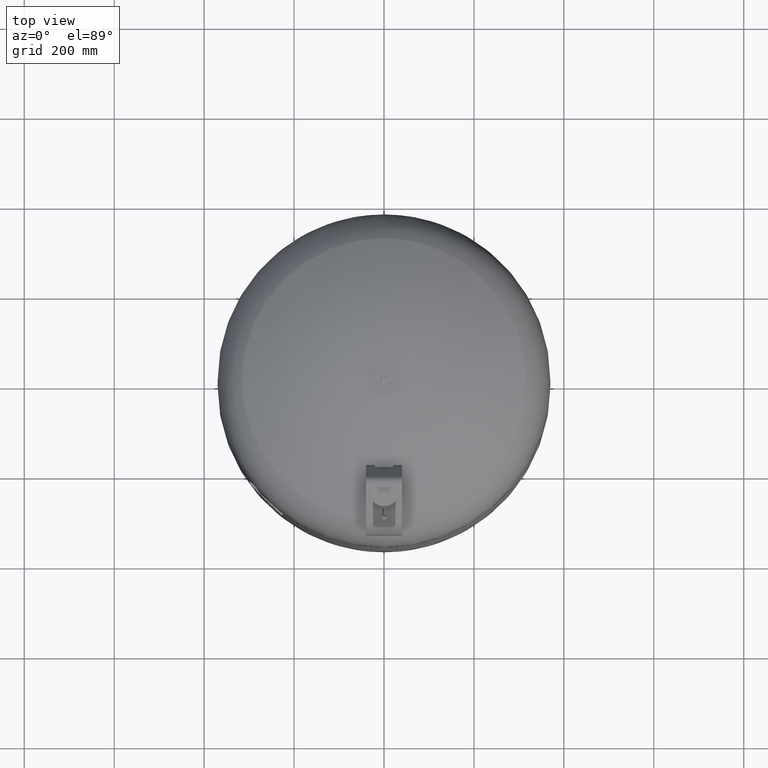
[diagram: clean part render]
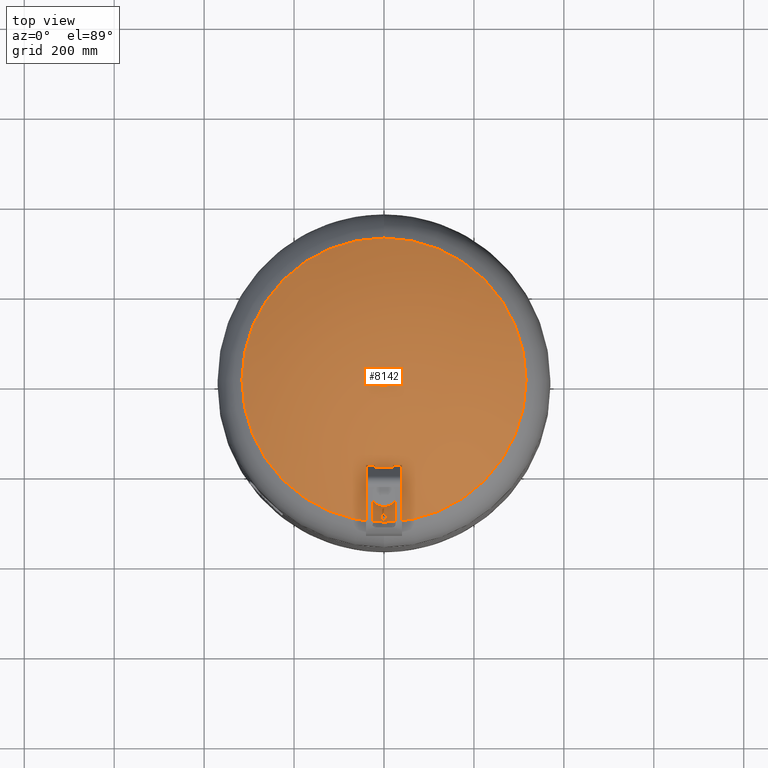
[diagram: same view with one face highlighted and labeled with its STEP entity id]
A machine part, top view. The second image highlights one B-rep face of the part: STEP entity #8142.
In plain terms, the highlighted spherical surface has radius 594 mm.
Its self-contained STEP definition (entity closure, byte-faithful):
#8081=CARTESIAN_POINT('',(-1.114251E-014,-315.931034482758610,1125.014494274920500));
#8082=VERTEX_POINT('',#8081);
#8098=CARTESIAN_POINT('',(2.754660E-014,315.931034482758610,1125.014494274920300));
#8099=VERTEX_POINT('',#8098);
#8107=CARTESIAN_POINT('',(315.931034482758610,-1.671377E-014,1125.014494274920500));
#8108=VERTEX_POINT('',#8107);
#8109=CARTESIAN_POINT('',(-1.114251E-014,-1.671377E-014,1125.014494274920500));
#8110=DIRECTION('',(0.0,0.0,-1.0));
#8111=DIRECTION('',(1.0,0.0,0.0));
#8112=AXIS2_PLACEMENT_3D('',#8109,#8110,#8111);
#8113=CIRCLE('',#8112,315.931034482758610);
#8114=EDGE_CURVE('',#8099,#8108,#8113,.T.);
#8116=CARTESIAN_POINT('',(-1.114251E-014,-1.671377E-014,1125.014494274920500));
#8117=DIRECTION('',(0.0,0.0,-1.0));
#8118=DIRECTION('',(1.0,0.0,0.0));
#8119=AXIS2_PLACEMENT_3D('',#8116,#8117,#8118);
#8120=CIRCLE('',#8119,315.931034482758610);
#8121=EDGE_CURVE('',#8108,#8082,#8120,.T.);
#8126=CARTESIAN_POINT('',(-7.274402E-014,-1.091160E-013,622.0));
#8127=DIRECTION('',(0.0,-1.0,0.0));
#8128=DIRECTION('',(-1.0,0.0,0.0));
#8129=AXIS2_PLACEMENT_3D('',#8126,#8127,#8128);
#8130=SPHERICAL_SURFACE('',#8129,594.0);
#8131=ORIENTED_EDGE('',*,*,#8121,.F.);
#8132=ORIENTED_EDGE('',*,*,#8114,.F.);
#8133=CARTESIAN_POINT('',(-1.114251E-014,-1.671377E-014,1125.014494274920500));
#8134=DIRECTION('',(0.0,0.0,-1.0));
#8135=DIRECTION('',(1.0,0.0,0.0));
#8136=AXIS2_PLACEMENT_3D('',#8133,#8134,#8135);
#8137=CIRCLE('',#8136,315.931034482758610);
#8138=EDGE_CURVE('',#8082,#8099,#8137,.T.);
#8139=ORIENTED_EDGE('',*,*,#8138,.F.);
#8140=EDGE_LOOP('',(#8131,#8132,#8139));
#8141=FACE_OUTER_BOUND('',#8140,.T.);
#8142=ADVANCED_FACE('',(#8141),#8130,.T.);